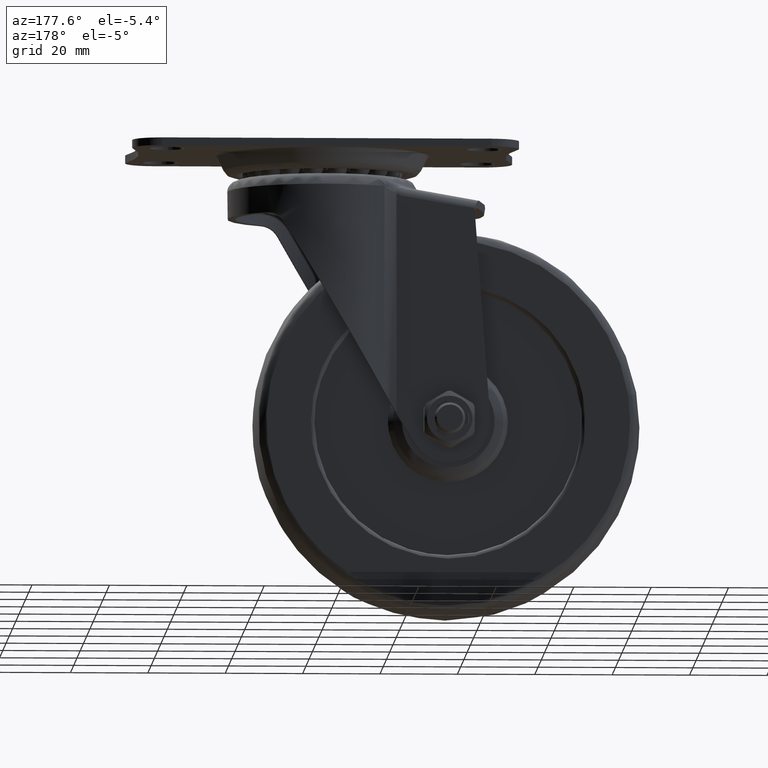
[diagram: clean part render]
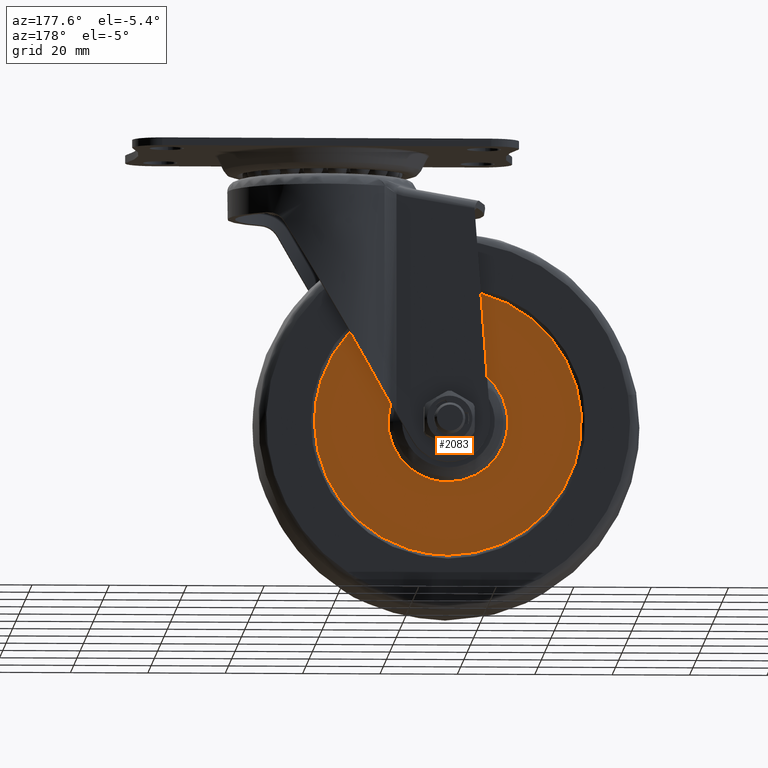
[diagram: same view with one face highlighted and labeled with its STEP entity id]
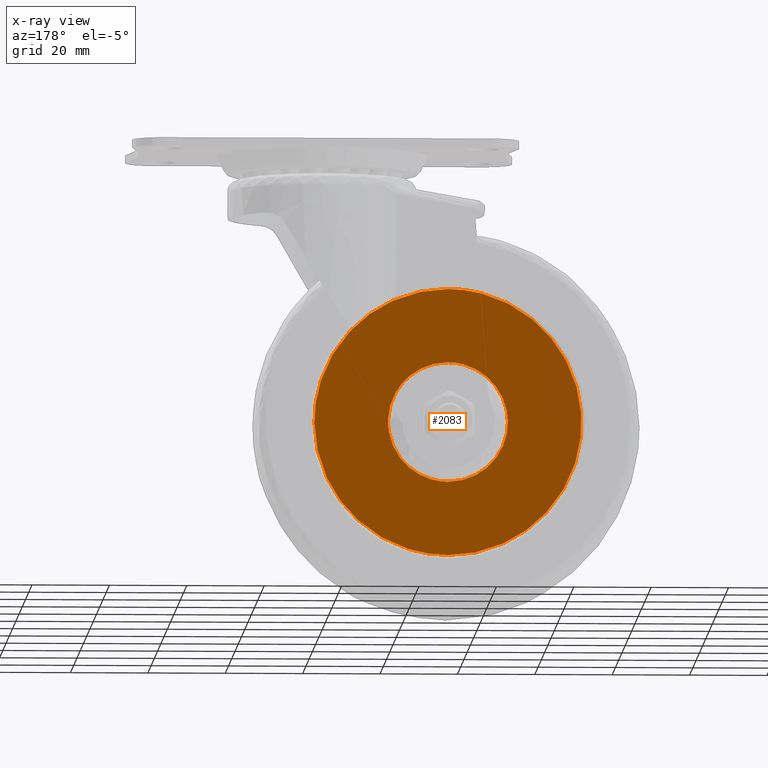
[diagram: x-ray of the same camera — body ghosted, the highlighted face saturated]
A machine part, auxiliary view. The second image highlights one B-rep face of the part: STEP entity #2083.
The next image is the same camera in x-ray: the body ghosted, the highlighted face saturated — about 0% of this face is hidden behind the body in this view.
In plain terms, the highlighted face is a freeform B-spline surface patch.
Its self-contained STEP definition (entity closure, byte-faithful):
#551=CARTESIAN_POINT('',(-16.712573176193501,12.499999999942631,-72.558237891256027));
#552=VERTEX_POINT('',#551);
#558=CARTESIAN_POINT('',(-32.0,12.500000000000000,-85.500000000000000));
#559=VERTEX_POINT('',#558);
#560=CARTESIAN_POINT('',(-16.712573176193505,12.499999999942629,-72.558237891256027));
#561=CARTESIAN_POINT('',(-18.878281414340080,12.500000000000000,-85.499999999999986));
#562=CARTESIAN_POINT('',(-32.0,12.500000000000000,-85.500000000000000));
#570=(BOUNDED_CURVE()B_SPLINE_CURVE(2,(#560,#561,#562),.UNSPECIFIED.,.F.,.U.)B_SPLINE_CURVE_WITH_KNOTS((3,3),(0.278400518250279,0.500000000000000),.UNSPECIFIED.)CURVE()GEOMETRIC_REPRESENTATION_ITEM()RATIONAL_B_SPLINE_CURVE((0.941013272795405,0.740380058011726,1.0))REPRESENTATION_ITEM(''));
#571=EDGE_CURVE('',#552,#559,#570,.T.);
#573=CARTESIAN_POINT('',(-32.0,12.500000000000000,-54.500000000000007));
#574=VERTEX_POINT('',#573);
#575=CARTESIAN_POINT('',(-32.0,12.500000000000000,-85.500000000000000));
#576=CARTESIAN_POINT('',(-47.500000000000021,12.500000000000000,-85.500000000000000));
#577=CARTESIAN_POINT('',(-47.500000000000000,12.500000000000000,-70.0));
#578=CARTESIAN_POINT('',(-47.500000000000021,12.500000000000000,-54.500000000000014));
#579=CARTESIAN_POINT('',(-32.0,12.500000000000000,-54.500000000000007));
#587=(BOUNDED_CURVE()B_SPLINE_CURVE(2,(#575,#576,#577,#578,#579),.UNSPECIFIED.,.F.,.U.)B_SPLINE_CURVE_WITH_KNOTS((3,2,3),(0.500000000000000,0.750000000000000,1.0),.UNSPECIFIED.)CURVE()GEOMETRIC_REPRESENTATION_ITEM()RATIONAL_B_SPLINE_CURVE((1.0,0.707106781186548,1.0,0.707106781186548,1.0))REPRESENTATION_ITEM(''));
#588=EDGE_CURVE('',#559,#574,#587,.T.);
#590=CARTESIAN_POINT('',(-18.550823922996042,12.499999999995399,-62.294828824103632));
#591=VERTEX_POINT('',#590);
#592=CARTESIAN_POINT('',(-32.0,12.500000000000000,-54.500000000000007));
#593=CARTESIAN_POINT('',(-23.016561454668768,12.499999999999996,-54.500000000000007));
#594=CARTESIAN_POINT('',(-18.550823922996038,12.499999999995394,-62.294828824103625));
#602=(BOUNDED_CURVE()B_SPLINE_CURVE(2,(#592,#593,#594),.UNSPECIFIED.,.F.,.U.)B_SPLINE_CURVE_WITH_KNOTS((3,3),(0.0,0.165241917605892),.UNSPECIFIED.)CURVE()GEOMETRIC_REPRESENTATION_ITEM()RATIONAL_B_SPLINE_CURVE((1.0,0.806407051478012,0.868731463346040))REPRESENTATION_ITEM(''));
#603=EDGE_CURVE('',#574,#591,#602,.T.);
#643=CARTESIAN_POINT('',(-18.550823922996038,12.499999999995394,-62.294828824103625));
#644=CARTESIAN_POINT('',(-16.499999999999996,12.499999999999996,-65.874488693230276));
#645=CARTESIAN_POINT('',(-16.500000000000000,12.500000000000000,-70.0));
#646=CARTESIAN_POINT('',(-16.499999999999996,12.500000000000005,-71.287950680248130));
#647=CARTESIAN_POINT('',(-16.712573176193505,12.499999999942629,-72.558237891256027));
#655=(BOUNDED_CURVE()B_SPLINE_CURVE(2,(#643,#644,#645,#646,#647),.UNSPECIFIED.,.F.,.U.)B_SPLINE_CURVE_WITH_KNOTS((3,2,3),(0.165241917605892,0.250000000000000,0.278400518250279),.UNSPECIFIED.)CURVE()GEOMETRIC_REPRESENTATION_ITEM()RATIONAL_B_SPLINE_CURVE((0.868731463346040,0.900699729708535,1.0,0.966726723174822,0.941013272795405))REPRESENTATION_ITEM(''));
#656=EDGE_CURVE('',#591,#552,#655,.T.);
#691=CARTESIAN_POINT('',(-32.0,12.500000000000000,-104.500000000000000));
#692=VERTEX_POINT('',#691);
#693=CARTESIAN_POINT('',(-66.416015747490604,12.500000000576989,-67.594202820585537));
#694=VERTEX_POINT('',#693);
#695=CARTESIAN_POINT('',(-32.0,12.500000000000000,-104.500000000000000));
#696=CARTESIAN_POINT('',(-66.500000000000000,12.500000000000000,-104.500000000000010));
#697=CARTESIAN_POINT('',(-66.500000000000000,12.500000000000000,-70.0));
#698=CARTESIAN_POINT('',(-66.500000000000000,12.499999999999998,-68.795635502260552));
#699=CARTESIAN_POINT('',(-66.416015747490604,12.500000000576998,-67.594202820585537));
#707=(BOUNDED_CURVE()B_SPLINE_CURVE(2,(#695,#696,#697,#698,#699),.UNSPECIFIED.,.F.,.U.)B_SPLINE_CURVE_WITH_KNOTS((3,2,3),(0.500000000000000,0.750000000000000,0.762166313465482),.UNSPECIFIED.)CURVE()GEOMETRIC_REPRESENTATION_ITEM()RATIONAL_B_SPLINE_CURVE((1.0,0.707106781186548,1.0,0.985746277152006,0.972879876385763))REPRESENTATION_ITEM(''));
#708=EDGE_CURVE('',#692,#694,#707,.T.);
#710=CARTESIAN_POINT('',(2.497276025030372,12.500000000594451,-70.433528376077462));
#711=VERTEX_POINT('',#710);
#712=CARTESIAN_POINT('',(2.497276025030371,12.500000000594458,-70.433528376077462));
#713=CARTESIAN_POINT('',(2.069161581601247,12.500000000000002,-104.500000000000010));
#714=CARTESIAN_POINT('',(-32.0,12.500000000000000,-104.500000000000000));
#722=(BOUNDED_CURVE()B_SPLINE_CURVE(2,(#712,#713,#714),.UNSPECIFIED.,.F.,.U.)B_SPLINE_CURVE_WITH_KNOTS((3,3),(0.252215704079310,0.500000000000000),.UNSPECIFIED.)CURVE()GEOMETRIC_REPRESENTATION_ITEM()RATIONAL_B_SPLINE_CURVE((0.994854295641623,0.709702639985456,1.0))REPRESENTATION_ITEM(''));
#723=EDGE_CURVE('',#711,#692,#722,.T.);
#811=CARTESIAN_POINT('',(-32.0,12.500000000000000,-35.500000000000007));
#812=VERTEX_POINT('',#811);
#813=CARTESIAN_POINT('',(-66.416015747490604,12.500000000576989,-67.594202820585537));
#814=CARTESIAN_POINT('',(-64.172521230582731,12.500000000000000,-35.500000000000000));
#815=CARTESIAN_POINT('',(-32.0,12.500000000000000,-35.500000000000007));
#823=(BOUNDED_CURVE()B_SPLINE_CURVE(2,(#813,#814,#815),.UNSPECIFIED.,.F.,.U.)B_SPLINE_CURVE_WITH_KNOTS((3,3),(0.762166313465482,1.0),.UNSPECIFIED.)CURVE()GEOMETRIC_REPRESENTATION_ITEM()RATIONAL_B_SPLINE_CURVE((0.972879876385762,0.721360504034542,1.0))REPRESENTATION_ITEM(''));
#824=EDGE_CURVE('',#694,#812,#823,.T.);
#858=CARTESIAN_POINT('',(-32.0,12.500000000000000,-35.500000000000007));
#859=CARTESIAN_POINT('',(2.500000000000001,12.500000000000000,-35.500000000000000));
#860=CARTESIAN_POINT('',(2.500000000000002,12.500000000000000,-70.0));
#861=CARTESIAN_POINT('',(2.500000000000003,12.499999999999998,-70.216772745822013));
#862=CARTESIAN_POINT('',(2.497276025030372,12.500000000594451,-70.433528376077462));
#870=(BOUNDED_CURVE()B_SPLINE_CURVE(2,(#858,#859,#860,#861,#862),.UNSPECIFIED.,.F.,.U.)B_SPLINE_CURVE_WITH_KNOTS((3,2,3),(0.0,0.250000000000000,0.252215704079310),.UNSPECIFIED.)CURVE()GEOMETRIC_REPRESENTATION_ITEM()RATIONAL_B_SPLINE_CURVE((1.0,0.707106781186548,1.0,0.997404141201091,0.994854295641623))REPRESENTATION_ITEM(''));
#871=EDGE_CURVE('',#812,#711,#870,.T.);
#2066=CARTESIAN_POINT('',(-69.942280429022333,12.500000000000000,-32.053450133735403));
#2067=CARTESIAN_POINT('',(-69.942280429022333,12.500000000000000,-107.946551716988790));
#2068=CARTESIAN_POINT('',(5.943495039434183,12.500000000000000,-32.053450133735403));
#2069=CARTESIAN_POINT('',(5.943495039434183,12.500000000000000,-107.946551716988790));
#2070=B_SPLINE_SURFACE_WITH_KNOTS('',1,1,((#2066,#2068),(#2067,#2069)),.UNSPECIFIED.,.F.,.F.,.U.,(2,2),(2,2),(0.0,75.893101583253440),(0.0,75.885775468456515),.UNSPECIFIED.);
#2071=ORIENTED_EDGE('',*,*,#871,.T.);
#2072=ORIENTED_EDGE('',*,*,#723,.T.);
#2073=ORIENTED_EDGE('',*,*,#708,.T.);
#2074=ORIENTED_EDGE('',*,*,#824,.T.);
#2075=EDGE_LOOP('',(#2071,#2072,#2073,#2074));
#2076=FACE_OUTER_BOUND('',#2075,.T.);
#2077=ORIENTED_EDGE('',*,*,#588,.F.);
#2078=ORIENTED_EDGE('',*,*,#571,.F.);
#2079=ORIENTED_EDGE('',*,*,#656,.F.);
#2080=ORIENTED_EDGE('',*,*,#603,.F.);
#2081=EDGE_LOOP('',(#2077,#2078,#2079,#2080));
#2082=FACE_BOUND('',#2081,.T.);
#2083=ADVANCED_FACE('',(#2076,#2082),#2070,.F.);